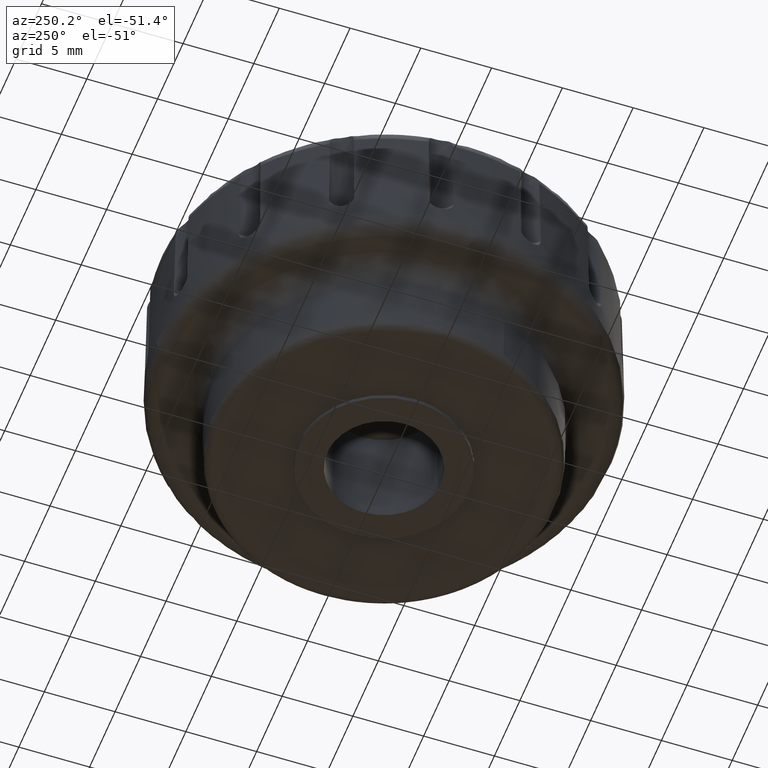
[diagram: clean part render]
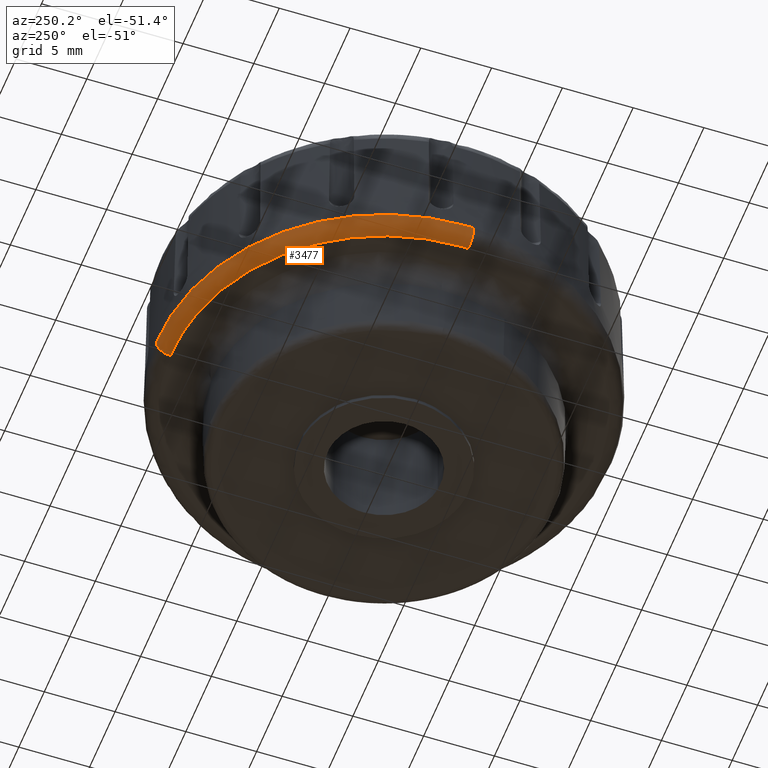
[diagram: same view with one face highlighted and labeled with its STEP entity id]
A machine part, auxiliary view. The second image highlights one B-rep face of the part: STEP entity #3477.
In plain terms, the highlighted face is a freeform B-spline surface patch.
Its self-contained STEP definition (entity closure, byte-faithful):
#1893=CARTESIAN_POINT('',(0.311967356578948,15.976295025269760,7.020248025336921));
#1894=VERTEX_POINT('',#1893);
#1908=CARTESIAN_POINT('',(-15.979340611109500,0.0,7.020248025610500));
#1909=VERTEX_POINT('',#1908);
#1910=CARTESIAN_POINT('',(-15.979340611109500,0.0,7.020248025610500));
#1911=CARTESIAN_POINT('',(-15.979340611109503,15.979340611109503,7.020248025610499));
#1912=CARTESIAN_POINT('',(0.0,15.979340611109500,7.020248025610500));
#1913=CARTESIAN_POINT('',(0.155998544581960,15.979340611109503,7.020248025610499));
#1914=CARTESIAN_POINT('',(0.311967356578948,15.976295025269762,7.020248025336921));
#1922=(BOUNDED_CURVE()B_SPLINE_CURVE(2,(#1910,#1911,#1912,#1913,#1914),.UNSPECIFIED.,.F.,.U.)B_SPLINE_CURVE_WITH_KNOTS((3,2,3),(0.0,0.250000000000000,0.253437668977224),.UNSPECIFIED.)CURVE()GEOMETRIC_REPRESENTATION_ITEM()RATIONAL_B_SPLINE_CURVE((1.0,0.707106781186548,1.0,0.995972520272183,0.992055801681300))REPRESENTATION_ITEM(''));
#1923=EDGE_CURVE('',#1909,#1894,#1922,.T.);
#1925=CARTESIAN_POINT('',(-15.967986852425190,-0.602264266580156,7.020248025347773));
#1926=VERTEX_POINT('',#1925);
#1927=CARTESIAN_POINT('',(-15.967986852425190,-0.602264266580156,7.020248025347774));
#1928=CARTESIAN_POINT('',(-15.979340611109500,-0.301239152620879,7.020248025610500));
#1929=CARTESIAN_POINT('',(-15.979340611109500,0.0,7.020248025610500));
#1937=(BOUNDED_CURVE()B_SPLINE_CURVE(2,(#1927,#1928,#1929),.UNSPECIFIED.,.F.,.U.)B_SPLINE_CURVE_WITH_KNOTS((3,3),(0.993386528582619,1.0),.UNSPECIFIED.)CURVE()GEOMETRIC_REPRESENTATION_ITEM()RATIONAL_B_SPLINE_CURVE((0.984913610626859,0.992251836276130,1.0))REPRESENTATION_ITEM(''));
#1938=EDGE_CURVE('',#1926,#1909,#1937,.T.);
#3351=CARTESIAN_POINT('',(0.292448189451121,14.976690524639290,6.000003504426930));
#3352=VERTEX_POINT('',#3351);
#3368=CARTESIAN_POINT('',(0.311967356578948,15.976295025269767,7.020248025336921));
#3369=CARTESIAN_POINT('',(0.312370677797136,15.996949682819166,6.000003508312661));
#3370=CARTESIAN_POINT('',(0.292448189451121,14.976690524639283,6.000003504426931));
#3378=(BOUNDED_CURVE()B_SPLINE_CURVE(2,(#3368,#3369,#3370),.UNSPECIFIED.,.F.,.U.)B_SPLINE_CURVE_WITH_KNOTS((3,3),(-1.733022552345234,-0.261944810504850),.UNSPECIFIED.)CURVE()GEOMETRIC_REPRESENTATION_ITEM()RATIONAL_B_SPLINE_CURVE((0.866238103236311,0.606913769314365,0.868018519503993))REPRESENTATION_ITEM(''));
#3379=EDGE_CURVE('',#1894,#3352,#3378,.T.);
#3385=CARTESIAN_POINT('',(-14.968902176012220,-0.564581808216597,6.000003504426930));
#3386=VERTEX_POINT('',#3385);
#3387=CARTESIAN_POINT('',(-15.967986852425195,-0.602264266580156,7.020248025347773));
#3388=CARTESIAN_POINT('',(-15.988630768985969,-0.603042892799447,6.000003505510001));
#3389=CARTESIAN_POINT('',(-14.968902176012215,-0.564581808216597,6.000003504426929));
#3397=(BOUNDED_CURVE()B_SPLINE_CURVE(2,(#3387,#3388,#3389),.UNSPECIFIED.,.F.,.U.)B_SPLINE_CURVE_WITH_KNOTS((3,3),(-1.733022552367569,-0.261944807673514),.UNSPECIFIED.)CURVE()GEOMETRIC_REPRESENTATION_ITEM()RATIONAL_B_SPLINE_CURVE((0.886171828893053,0.620879966459135,0.887993216820816))REPRESENTATION_ITEM(''));
#3398=EDGE_CURVE('',#1926,#3386,#3397,.T.);
#3418=CARTESIAN_POINT('',(-15.964094164818805,-0.602117446151123,7.090468858253721));
#3419=CARTESIAN_POINT('',(-16.566211610969930,15.361976718667684,7.090468858253720));
#3420=CARTESIAN_POINT('',(-0.602117446151124,15.964094164818805,7.090468858253721));
#3421=CARTESIAN_POINT('',(-0.145232370678017,15.981326490811641,7.090468858253722));
#3422=CARTESIAN_POINT('',(0.311890423430412,15.972400329503833,7.090468858253724));
#3423=CARTESIAN_POINT('',(-16.070338060978244,-0.606124645229517,5.920037497864023));
#3424=CARTESIAN_POINT('',(-16.676462706207754,15.464213415748723,5.920037497864023));
#3425=CARTESIAN_POINT('',(-0.606124645229519,16.070338060978244,5.920037497864023));
#3426=CARTESIAN_POINT('',(-0.146198918027963,16.087685071176420,5.920037497864021));
#3427=CARTESIAN_POINT('',(0.313966109868862,16.078699504671835,5.920037497864021));
#3428=CARTESIAN_POINT('',(-14.898814915495590,-0.561938328287121,6.002466142719822));
#3429=CARTESIAN_POINT('',(-15.460753243782708,14.336876587208467,6.002466142719823));
#3430=CARTESIAN_POINT('',(-0.561938328287122,14.898814915495590,6.002466142719822));
#3431=CARTESIAN_POINT('',(-0.135541057834582,14.914897333506904,6.002466142719820));
#3432=CARTESIAN_POINT('',(0.291078068359540,14.906566812284845,6.002466142719825));
#3440=(BOUNDED_SURFACE()B_SPLINE_SURFACE(2,2,((#3418,#3423,#3428),(#3419,#3424,#3429),(#3420,#3425,#3430),(#3421,#3426,#3431),(#3422,#3427,#3432)),.UNSPECIFIED.,.F.,.F.,.U.)B_SPLINE_SURFACE_WITH_KNOTS((3,2,3),(3,3),(0.0,26.468984193722012,27.527742551759271),(0.0,1.848518065123705),.UNSPECIFIED.)GEOMETRIC_REPRESENTATION_ITEM()RATIONAL_B_SPLINE_SURFACE(((0.914002805561081,0.592957895519388,0.916006383480639),(0.646297581835770,0.419284548879863,0.647714325369325),(0.914002805561081,0.592957895519388,0.916006383480639),(0.903294606824212,0.586010968278919,0.905274711390716),(0.893443063169322,0.579619794687680,0.895401572249226)))REPRESENTATION_ITEM('')SURFACE());
#3441=CARTESIAN_POINT('',(-14.979545552428940,0.0,6.000003504426930));
#3442=VERTEX_POINT('',#3441);
#3443=CARTESIAN_POINT('',(-14.979545552428940,0.0,6.000003504426930));
#3444=CARTESIAN_POINT('',(-14.979545552428936,14.979545552428936,6.000003504426929));
#3445=CARTESIAN_POINT('',(0.0,14.979545552428940,6.000003504426930));
#3446=CARTESIAN_POINT('',(0.146238030877061,14.979545552428943,6.000003504426930));
#3447=CARTESIAN_POINT('',(0.292448189451121,14.976690524639283,6.000003504426930));
#3455=(BOUNDED_CURVE()B_SPLINE_CURVE(2,(#3443,#3444,#3445,#3446,#3447),.UNSPECIFIED.,.F.,.U.)B_SPLINE_CURVE_WITH_KNOTS((3,2,3),(0.0,0.250000000000000,0.253437668978695),.UNSPECIFIED.)CURVE()GEOMETRIC_REPRESENTATION_ITEM()RATIONAL_B_SPLINE_CURVE((1.0,0.707106781186548,1.0,0.995972520270459,0.992055801677947))REPRESENTATION_ITEM(''));
#3456=EDGE_CURVE('',#3442,#3352,#3455,.T.);
#3457=ORIENTED_EDGE('',*,*,#3456,.F.);
#3458=CARTESIAN_POINT('',(-14.968902176012213,-0.564581808216597,6.000003504426930));
#3459=CARTESIAN_POINT('',(-14.979545552428943,-0.282391227451362,6.000003504426930));
#3460=CARTESIAN_POINT('',(-14.979545552428940,0.0,6.000003504426930));
#3468=(BOUNDED_CURVE()B_SPLINE_CURVE(2,(#3458,#3459,#3460),.UNSPECIFIED.,.F.,.U.)B_SPLINE_CURVE_WITH_KNOTS((3,3),(0.993386528582364,1.0),.UNSPECIFIED.)CURVE()GEOMETRIC_REPRESENTATION_ITEM()RATIONAL_B_SPLINE_CURVE((0.984913610626294,0.992251836275831,1.0))REPRESENTATION_ITEM(''));
#3469=EDGE_CURVE('',#3386,#3442,#3468,.T.);
#3470=ORIENTED_EDGE('',*,*,#3469,.F.);
#3471=ORIENTED_EDGE('',*,*,#3398,.F.);
#3472=ORIENTED_EDGE('',*,*,#1938,.T.);
#3473=ORIENTED_EDGE('',*,*,#1923,.T.);
#3474=ORIENTED_EDGE('',*,*,#3379,.T.);
#3475=EDGE_LOOP('',(#3457,#3470,#3471,#3472,#3473,#3474));
#3476=FACE_OUTER_BOUND('',#3475,.T.);
#3477=ADVANCED_FACE('',(#3476),#3440,.T.);